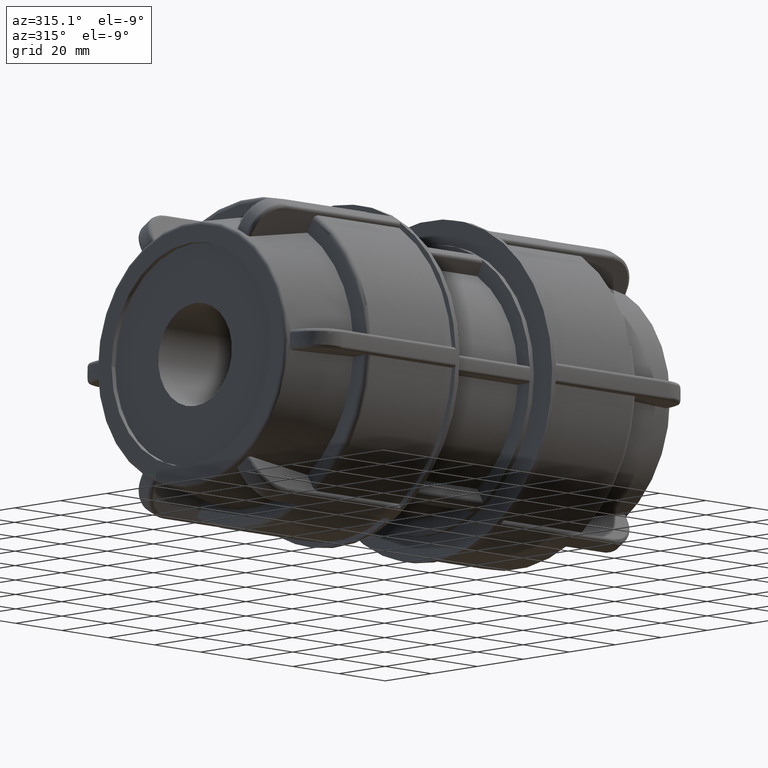
[diagram: clean part render]
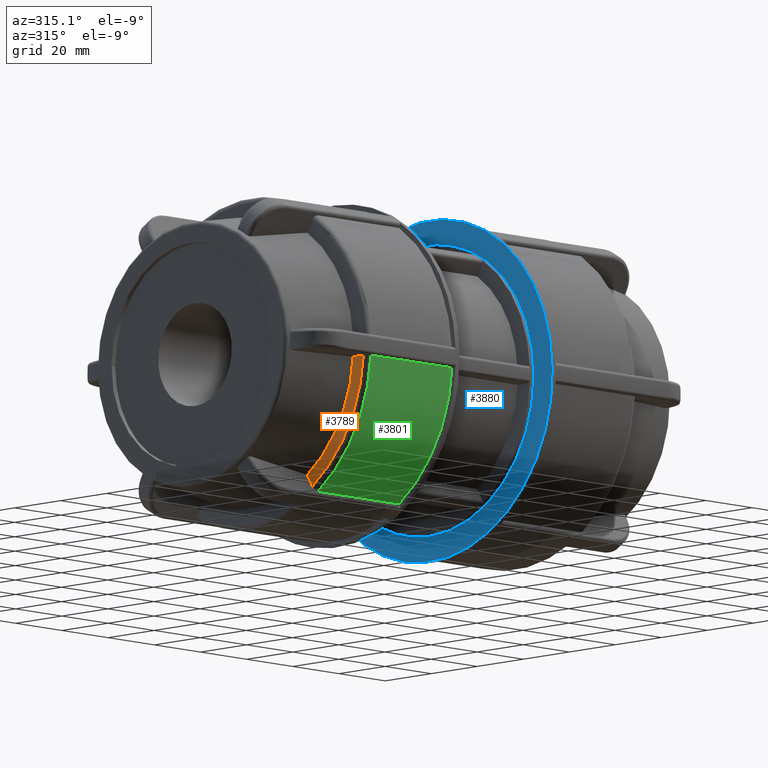
[diagram: same view with three faces highlighted in distinct colors, each labeled with its STEP entity id]
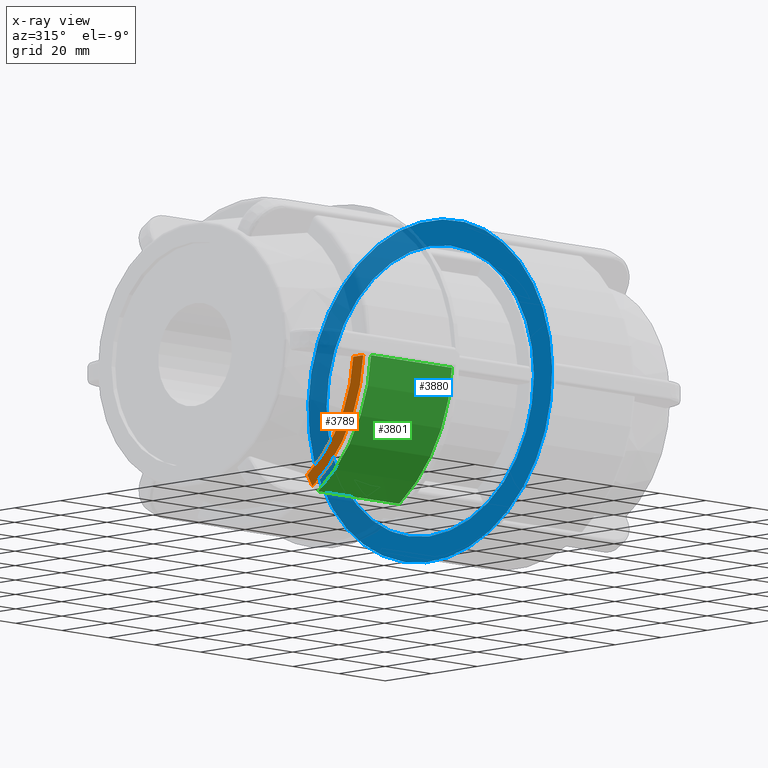
[diagram: x-ray of the same camera — body ghosted, the three highlighted faces saturated]
A machine part, auxiliary view with three faces highlighted in distinct colors.
The next image is the same camera in x-ray (body ghosted, the three faces saturated) — at least one of them is partly hidden behind the body in this view.
Their STEP definitions:

[orange] entity #3789 — the highlighted planar face has unit normal (1, 0, 0).
#255=PLANE('',#4125);
#403=FACE_OUTER_BOUND('',#645,.T.);
#645=EDGE_LOOP('',(#2928,#2929,#2930,#2931));
#877=LINE('',#6010,#1105);
#917=LINE('',#6638,#1145);
#1105=VECTOR('',#4719,4.38265552667058);
#1145=VECTOR('',#4875,4.38265552667059);
#1361=CIRCLE('',#4126,49.74);
#1362=CIRCLE('',#4127,45.3669908667471);
#1610=VERTEX_POINT('',#5998);
#1611=VERTEX_POINT('',#6009);
#1678=VERTEX_POINT('',#6633);
#1679=VERTEX_POINT('',#6637);
#2036=EDGE_CURVE('',#1611,#1610,#877,.T.);
#2140=EDGE_CURVE('',#1679,#1678,#917,.T.);
#2156=EDGE_CURVE('',#1679,#1610,#1361,.T.);
#2157=EDGE_CURVE('',#1678,#1611,#1362,.T.);
#2928=ORIENTED_EDGE('',*,*,#2036,.T.);
#2929=ORIENTED_EDGE('',*,*,#2156,.F.);
#2930=ORIENTED_EDGE('',*,*,#2140,.T.);
#2931=ORIENTED_EDGE('',*,*,#2157,.T.);
#3789=ADVANCED_FACE('',(#403),#255,.F.);
#4125=AXIS2_PLACEMENT_3D('',#6686,#4902,#4903);
#4126=AXIS2_PLACEMENT_3D('',#6687,#4904,#4905);
#4127=AXIS2_PLACEMENT_3D('',#6688,#4906,#4907);
#4719=DIRECTION('',(1.53080849893419E-16,-0.500000000000001,-0.866025403784438));
#4875=DIRECTION('',(-3.06161699786838E-16,1.,-3.33066907387547E-16));
#4902=DIRECTION('center_axis',(1.,3.06161699786838E-16,0.));
#4903=DIRECTION('ref_axis',(0.,0.,-1.));
#4904=DIRECTION('center_axis',(1.,3.06161699786838E-16,0.));
#4905=DIRECTION('ref_axis',(3.06161699786838E-16,-1.,1.83697019872103E-16));
#4906=DIRECTION('center_axis',(1.,3.06161699786838E-16,0.));
#4907=DIRECTION('ref_axis',(0.,0.,-1.));
#5998=CARTESIAN_POINT('',(-58.45,-27.548058083845,-41.414636251078));
#6009=CARTESIAN_POINT('',(-58.45,-25.3567303205097,-37.619145228945));
#6010=CARTESIAN_POINT('',(-58.45,-0.65185841512431,5.17094810566341));
#6633=CARTESIAN_POINT('',(-58.45,-45.2575005971774,-3.14999999999999));
#6637=CARTESIAN_POINT('',(-58.45,-49.640156123848,-3.14999999999999));
#6638=CARTESIAN_POINT('',(-58.45,-3.76965891539936,-3.15));
#6686=CARTESIAN_POINT('Origin',(-58.45,45.366990866747,0.));
#6687=CARTESIAN_POINT('Origin',(-58.45,-1.78951513525407E-14,0.));
#6688=CARTESIAN_POINT('Origin',(-58.45,-1.78951513525407E-14,0.));

[blue] entity #3880 — the highlighted planar face has unit normal (-1, -0, 0).
#208=FACE_BOUND('',#746,.T.);
#287=PLANE('',#4289);
#494=FACE_OUTER_BOUND('',#745,.T.);
#745=EDGE_LOOP('',(#3394));
#746=EDGE_LOOP('',(#3395));
#1251=CIRCLE('',#3931,45.05);
#1398=CIRCLE('',#4204,53.);
#1491=VERTEX_POINT('',#5499);
#1721=VERTEX_POINT('',#7009);
#1870=EDGE_CURVE('',#1491,#1491,#1251,.T.);
#2223=EDGE_CURVE('',#1721,#1721,#1398,.T.);
#3394=ORIENTED_EDGE('',*,*,#2223,.F.);
#3395=ORIENTED_EDGE('',*,*,#1870,.T.);
#3880=ADVANCED_FACE('',(#494,#208),#287,.T.);
#3931=AXIS2_PLACEMENT_3D('',#5500,#4388,#4389);
#4204=AXIS2_PLACEMENT_3D('',#7010,#5076,#5077);
#4289=AXIS2_PLACEMENT_3D('',#7895,#5313,#5314);
#4388=DIRECTION('center_axis',(1.,3.06161699786838E-16,0.));
#4389=DIRECTION('ref_axis',(0.,0.,-1.));
#5076=DIRECTION('center_axis',(1.,3.06161699786838E-16,0.));
#5077=DIRECTION('ref_axis',(0.,0.,-1.));
#5313=DIRECTION('center_axis',(-1.,-3.06161699786838E-16,0.));
#5314=DIRECTION('ref_axis',(0.,0.,1.));
#5499=CARTESIAN_POINT('',(20.04,25.1978487353781,-37.3439542511101));
#5500=CARTESIAN_POINT('Origin',(20.04,6.13548046372824E-15,0.));
#7009=CARTESIAN_POINT('',(20.04,29.1811343706938,-44.2432073525362));
#7010=CARTESIAN_POINT('Origin',(20.04,6.13548046372824E-15,0.));
#7895=CARTESIAN_POINT('Origin',(20.04,53.,0.));

[green] entity #3801 — the highlighted cylindrical surface (partial cylindrical patch) has radius 51.41 mm, axis along (1, 0, 0).
#415=FACE_OUTER_BOUND('',#657,.T.);
#657=EDGE_LOOP('',(#2976,#2977,#2978,#2979));
#876=LINE('',#5997,#1104);
#918=LINE('',#6651,#1146);
#1104=VECTOR('',#4718,35.07);
#1146=VECTOR('',#4876,35.07);
#1370=CIRCLE('',#4141,51.41);
#1376=CIRCLE('',#4153,51.41);
#1608=VERTEX_POINT('',#5994);
#1609=VERTEX_POINT('',#5996);
#1680=VERTEX_POINT('',#6639);
#1681=VERTEX_POINT('',#6650);
#2034=EDGE_CURVE('',#1609,#1608,#876,.T.);
#2142=EDGE_CURVE('',#1681,#1680,#918,.T.);
#2167=EDGE_CURVE('',#1609,#1680,#1370,.T.);
#2175=EDGE_CURVE('',#1681,#1608,#1376,.T.);
#2976=ORIENTED_EDGE('',*,*,#2034,.T.);
#2977=ORIENTED_EDGE('',*,*,#2175,.F.);
#2978=ORIENTED_EDGE('',*,*,#2142,.T.);
#2979=ORIENTED_EDGE('',*,*,#2167,.F.);
#3649=CYLINDRICAL_SURFACE('',#4152,51.41);
#3801=ADVANCED_FACE('',(#415),#3649,.T.);
#4141=AXIS2_PLACEMENT_3D('',#6716,#4935,#4936);
#4152=AXIS2_PLACEMENT_3D('',#6740,#4958,#4959);
#4153=AXIS2_PLACEMENT_3D('',#6741,#4960,#4961);
#4718=DIRECTION('',(1.,3.06161699786838E-16,0.));
#4876=DIRECTION('',(-1.,-3.06161699786838E-16,0.));
#4935=DIRECTION('center_axis',(-1.,-3.06161699786838E-16,0.));
#4936=DIRECTION('ref_axis',(3.07735423087113E-16,-1.,1.83697019872103E-16));
#4958=DIRECTION('center_axis',(1.,3.06161699786838E-16,0.));
#4959=DIRECTION('ref_axis',(-1.47474491896561E-16,1.,0.));
#4960=DIRECTION('center_axis',(1.,3.06161699786838E-16,0.));
#4961=DIRECTION('ref_axis',(0.,0.,-1.));
#5994=CARTESIAN_POINT('',(-21.71,-28.3846828498372,-42.8637128526468));
#5996=CARTESIAN_POINT('',(-56.78,-28.3846828498372,-42.8637128526468));
#5997=CARTESIAN_POINT('',(-40.08,-28.3846828498372,-42.8637128526468));
#6639=CARTESIAN_POINT('',(-56.78,-51.3134056558323,-3.14999999999999));
#6650=CARTESIAN_POINT('',(-21.71,-51.3134056558323,-3.14999999999999));
#6651=CARTESIAN_POINT('',(-40.08,-51.3134056558323,-3.14999999999999));
#6716=CARTESIAN_POINT('Origin',(-56.78,-1.73838613138967E-14,0.));
#6740=CARTESIAN_POINT('Origin',(-40.08,-1.22709609274565E-14,0.));
#6741=CARTESIAN_POINT('Origin',(-21.71,-6.64677050237226E-15,0.));